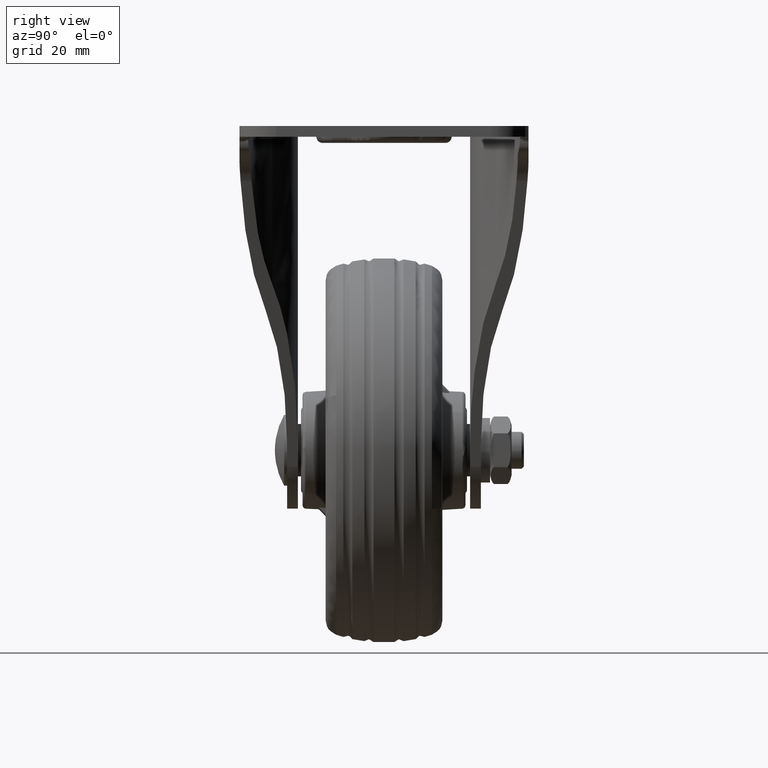
[diagram: clean part render]
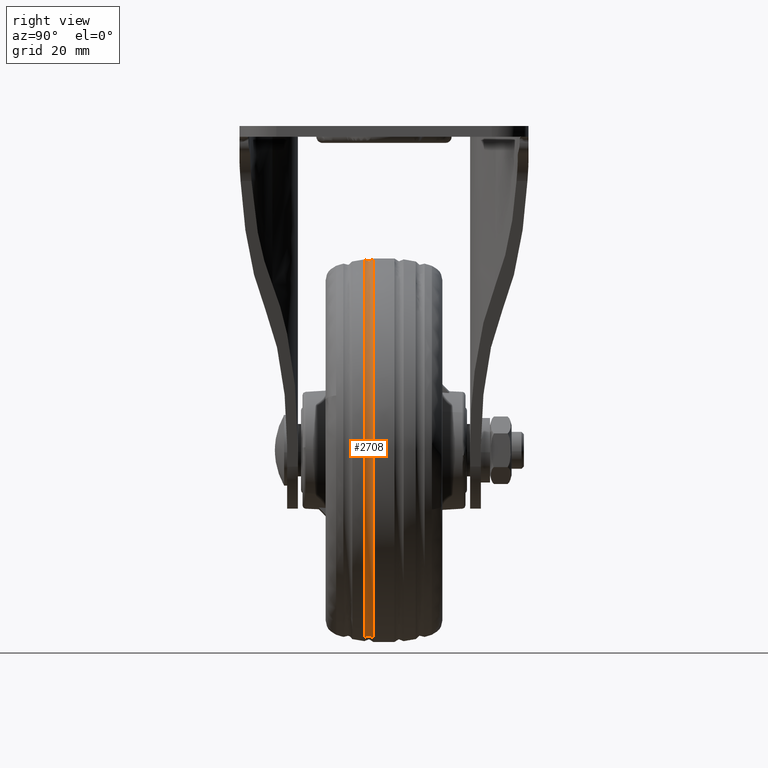
[diagram: same view with one face highlighted and labeled with its STEP entity id]
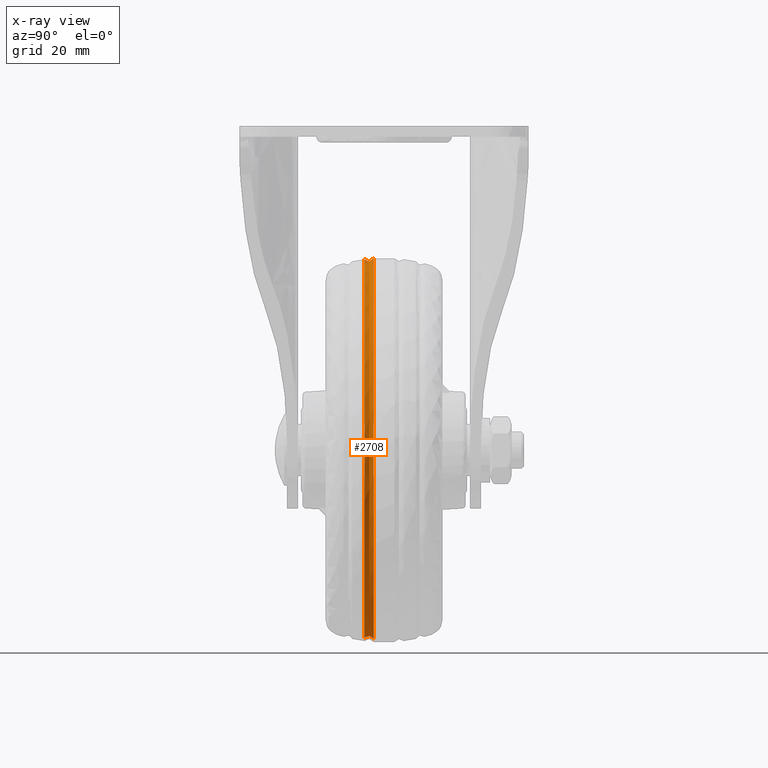
[diagram: x-ray of the same camera — body ghosted, the highlighted face saturated]
A machine part, right view. The second image highlights one B-rep face of the part: STEP entity #2708.
The next image is the same camera in x-ray: the body ghosted, the highlighted face saturated — about 0% of this face is hidden behind the body in this view.
In plain terms, the highlighted face is a freeform B-spline surface patch.
Its self-contained STEP definition (entity closure, byte-faithful):
#2330=CARTESIAN_POINT('',(0.0,-6.374438610043154,62.091986689693542));
#2331=VERTEX_POINT('',#2330);
#2345=CARTESIAN_POINT('',(-10.867531413628820,-6.374433656045675,61.133559608799636));
#2346=VERTEX_POINT('',#2345);
#2347=CARTESIAN_POINT('',(0.0,-6.374438610043154,62.091986689693542));
#2348=CARTESIAN_POINT('',(-5.476028775761519,-6.374436136812212,62.091988745565665));
#2349=CARTESIAN_POINT('',(-10.867531413628818,-6.374433656045674,61.133559608799644));
#2357=(BOUNDED_CURVE()B_SPLINE_CURVE(2,(#2347,#2348,#2349),.UNSPECIFIED.,.F.,.U.)B_SPLINE_CURVE_WITH_KNOTS((3,3),(0.500000000000000,0.530081745966939),.UNSPECIFIED.)CURVE()GEOMETRIC_REPRESENTATION_ITEM()RATIONAL_B_SPLINE_CURVE((1.0,0.964757042384859,0.937995442354536))REPRESENTATION_ITEM(''));
#2358=EDGE_CURVE('',#2331,#2346,#2357,.T.);
#2444=CARTESIAN_POINT('',(10.867531434945681,-6.374433086720965,-61.133573728714481));
#2445=VERTEX_POINT('',#2444);
#2459=CARTESIAN_POINT('',(10.867531434945681,-6.374433086720965,-61.133573728714481));
#2460=CARTESIAN_POINT('',(13.110170700318969,-6.374433097221136,-60.734946528682663));
#2461=CARTESIAN_POINT('',(17.902189161825071,-6.374433131909542,-59.608078220992617));
#2462=CARTESIAN_POINT('',(24.335093092583080,-6.374433215586202,-57.262113031335339));
#2463=CARTESIAN_POINT('',(30.358003833643380,-6.374433328929071,-54.279830681455792));
#2464=CARTESIAN_POINT('',(36.569482480765672,-6.374433481583367,-50.401194539507500));
#2465=CARTESIAN_POINT('',(42.697917362227038,-6.374433686369096,-45.358091066870472));
#2466=CARTESIAN_POINT('',(47.574168065709060,-6.374433906920137,-40.051936698746488));
#2467=CARTESIAN_POINT('',(51.989114397088407,-6.374434152541783,-34.216387143649037));
#2468=CARTESIAN_POINT('',(55.709672599183868,-6.374434422153304,-27.892617510954999));
#2469=CARTESIAN_POINT('',(58.950839966827452,-6.374434762968967,-20.004921612330971));
#2470=CARTESIAN_POINT('',(61.219487073780613,-6.374435127365011,-11.658404479667141));
#2471=CARTESIAN_POINT('',(62.264476238130889,-6.374435517750769,-2.817207741722704));
#2472=CARTESIAN_POINT('',(61.944060884363857,-6.374435952004971,6.909804055884988));
#2473=CARTESIAN_POINT('',(60.363126638784067,-6.374436336429691,15.426454552485220));
#2474=CARTESIAN_POINT('',(57.982331636279852,-6.374436658321194,22.480964481085721));
#2475=CARTESIAN_POINT('',(55.187625681167638,-6.374436945328807,28.722155103563392));
#2476=CARTESIAN_POINT('',(51.796091991655253,-6.374437215182703,34.534905133738782));
#2477=CARTESIAN_POINT('',(47.493556968889798,-6.374437479746863,40.162605106311062));
#2478=CARTESIAN_POINT('',(42.892382760811600,-6.374437712807595,45.061426760913761));
#2479=CARTESIAN_POINT('',(36.969728445148952,-6.374437958502717,50.147835473138592));
#2480=CARTESIAN_POINT('',(29.769193308255200,-6.374438186285432,54.739321672475420));
#2481=CARTESIAN_POINT('',(22.538823093888158,-6.374438354564527,57.992583399676597));
#2482=CARTESIAN_POINT('',(15.573167399382919,-6.374438477426847,60.245329134002631));
#2483=CARTESIAN_POINT('',(8.272028286035349,-6.374438566901085,61.724076381586627));
#2484=CARTESIAN_POINT('',(2.757348086990729,-6.374438601129630,62.092081929184573));
#2485=CARTESIAN_POINT('',(0.0,-6.374438610043154,62.091986689693542));
#2486=B_SPLINE_CURVE_WITH_KNOTS('',3,(#2459,#2460,#2461,#2462,#2463,#2464,#2465,#2466,#2467,#2468,#2469,#2470,#2471,#2472,#2473,#2474,#2475,#2476,#2477,#2478,#2479,#2480,#2481,#2482,#2483,#2484,#2485),.UNSPECIFIED.,.F.,.U.,(4,1,1,1,1,1,1,1,1,1,1,1,1,1,1,1,1,1,1,1,1,1,1,1,4),(0.000000079511352,6.833384223063149,14.745853438821509,20.500378680845760,26.974233986862352,36.684984740949091,44.237780112204057,48.553686360324413,58.624102126443717,66.176902884667570,74.089365819039429,84.519438071261348,92.791301991790235,103.221385334991990,110.414527478862790,115.090096217104600,123.721865807160800,130.555377192814890,136.309886551009210,143.862690880152910,153.933115047603910,161.845512057642110,167.600104250039010,175.872175404109210,184.144220677224010),.UNSPECIFIED.);
#2487=EDGE_CURVE('',#2445,#2331,#2486,.T.);
#2535=CARTESIAN_POINT('',(-10.918381879737060,-3.425196523599276,61.419610804111912));
#2536=VERTEX_POINT('',#2535);
#2570=CARTESIAN_POINT('',(10.918382044488959,-3.425194340832649,-61.419625730897643));
#2571=VERTEX_POINT('',#2570);
#2585=CARTESIAN_POINT('',(10.867531434945681,-6.374433086720965,-61.133573728714481));
#2586=CARTESIAN_POINT('',(10.835997617764370,-6.222391846852705,-60.956185263934799));
#2587=CARTESIAN_POINT('',(10.783663196843580,-5.846184084289674,-60.661786316619740));
#2588=CARTESIAN_POINT('',(10.748800603787769,-5.153340790714335,-60.465672353380207));
#2589=CARTESIAN_POINT('',(10.761268537209199,-4.528946591453851,-60.535808726400298));
#2590=CARTESIAN_POINT('',(10.797335800132901,-4.080890576051390,-60.738699367846998));
#2591=CARTESIAN_POINT('',(10.845042914040260,-3.716353219497317,-61.007068136617967));
#2592=CARTESIAN_POINT('',(10.887826363620221,-3.521683191461349,-61.247739616159201));
#2593=CARTESIAN_POINT('',(10.918382044488959,-3.425194340832649,-61.419625730897643));
#2594=B_SPLINE_CURVE_WITH_KNOTS('',3,(#2585,#2586,#2587,#2588,#2589,#2590,#2591,#2592,#2593),.UNSPECIFIED.,.F.,.U.,(4,1,1,1,1,1,4),(0.000000523027409,0.707167302751854,1.414392477976093,2.121411441895011,2.556630288449993,2.883042927634077,3.481408307153428),.UNSPECIFIED.);
#2595=EDGE_CURVE('',#2445,#2571,#2594,.T.);
#2599=CARTESIAN_POINT('',(-10.867531413628820,-6.374433656045675,61.133559608799636));
#2600=CARTESIAN_POINT('',(-10.840860610233980,-6.245731919076930,60.983527253330337));
#2601=CARTESIAN_POINT('',(-10.801387304280951,-5.979046659955018,60.761476459321521));
#2602=CARTESIAN_POINT('',(-10.762658664561380,-5.477708032772665,60.543614666529002));
#2603=CARTESIAN_POINT('',(-10.752357049866349,-5.021968913845257,60.485664574176219));
#2604=CARTESIAN_POINT('',(-10.762983518585131,-4.552490893767446,60.545442080912970));
#2605=CARTESIAN_POINT('',(-10.791911135794670,-4.106337818328609,60.708169782845822));
#2606=CARTESIAN_POINT('',(-10.846955127353230,-3.698848847504834,61.017810987962903));
#2607=CARTESIAN_POINT('',(-10.896170506385181,-3.495433516820994,61.294664261933342));
#2608=CARTESIAN_POINT('',(-10.918381879737060,-3.425196523599276,61.419610804111912));
#2609=B_SPLINE_CURVE_WITH_KNOTS('',3,(#2599,#2600,#2601,#2602,#2603,#2604,#2605,#2606,#2607,#2608),.UNSPECIFIED.,.F.,.U.,(4,1,1,1,1,1,1,4),(0.000000523473398,0.598366306952133,1.033553740830117,1.631999385822028,1.958228599101034,2.447859504128588,3.046236035646843,3.481406026431190),.UNSPECIFIED.);
#2610=EDGE_CURVE('',#2346,#2536,#2609,.T.);
#2615=CARTESIAN_POINT('',(9.178377660741591,-6.478190734998982,-61.571166448890565));
#2616=CARTESIAN_POINT('',(10.029798365351731,-6.478190734998982,-61.419811935051712));
#2617=CARTESIAN_POINT('',(72.157871276773136,-6.478190734998981,-50.375490108793812));
#2618=CARTESIAN_POINT('',(61.266677192783433,-6.478190734998982,10.891187083989600));
#2619=CARTESIAN_POINT('',(50.375483108793738,-6.478190734998981,72.157864276773040));
#2620=CARTESIAN_POINT('',(-11.752589802960737,-6.478190734998983,61.113542450455967));
#2621=CARTESIAN_POINT('',(-12.604010507896239,-6.478190734998982,60.962187936559253));
#2622=CARTESIAN_POINT('',(9.050953847811277,-5.877914976264891,-60.716371386678667));
#2623=CARTESIAN_POINT('',(9.890554242057281,-5.877914976264891,-60.567118134083401));
#2624=CARTESIAN_POINT('',(71.156100437646629,-5.877914976264890,-49.676125104084434));
#2625=CARTESIAN_POINT('',(60.416109270865505,-5.877914976264890,10.739984166781040));
#2626=CARTESIAN_POINT('',(49.676118104084352,-5.877914976264890,71.156093437646518));
#2627=CARTESIAN_POINT('',(-11.589428091833438,-5.877914976264892,60.265100407589195));
#2628=CARTESIAN_POINT('',(-12.429028486400290,-5.877914976264891,60.115847154936894));
#2629=CARTESIAN_POINT('',(9.065556125913560,-4.830605036026673,-60.814327607983266));
#2630=CARTESIAN_POINT('',(9.906511082193319,-4.830605036026671,-60.664833558943890));
#2631=CARTESIAN_POINT('',(71.270899516808413,-4.830605036026674,-49.756269639543866));
#2632=CARTESIAN_POINT('',(60.513581078176109,-4.830605036026674,10.757311438632209));
#2633=CARTESIAN_POINT('',(49.756262639543799,-4.830605036026674,71.270892516808317));
#2634=CARTESIAN_POINT('',(-11.608125795400252,-4.830605036026672,60.362328597349787));
#2635=CARTESIAN_POINT('',(-12.449080752001395,-4.830605036026674,60.212834548253333));
#2636=CARTESIAN_POINT('',(9.080288359758713,-3.773974362383427,-60.913155609253913));
#2637=CARTESIAN_POINT('',(9.922609933253911,-3.773974362383427,-60.763418620756866));
#2638=CARTESIAN_POINT('',(71.386720272143535,-3.773974362383428,-49.837127436493738));
#2639=CARTESIAN_POINT('',(60.611920354318578,-3.773974362383428,10.774792917824831));
#2640=CARTESIAN_POINT('',(49.837120436493649,-3.773974362383428,71.386713272143396));
#2641=CARTESIAN_POINT('',(-11.626989902725454,-3.773974362383427,60.460422087821705));
#2642=CARTESIAN_POINT('',(-12.469311476542535,-3.773974362383428,60.310685099267431));
#2643=CARTESIAN_POINT('',(9.223795556979288,-3.349917822469868,-61.875842572977888));
#2644=CARTESIAN_POINT('',(10.079429395832314,-3.349917822469868,-61.723739102857344));
#2645=CARTESIAN_POINT('',(72.514934238389898,-3.349917822469869,-50.624766021087673));
#2646=CARTESIAN_POINT('',(61.569846629738763,-3.349917822469868,10.945080608651049));
#2647=CARTESIAN_POINT('',(50.624759021087620,-3.349917822469869,72.514927238389788));
#2648=CARTESIAN_POINT('',(-11.810745821804703,-3.349917822469868,61.415954156560673));
#2649=CARTESIAN_POINT('',(-12.666379660984699,-3.349917822469868,61.263850686382014));
#2657=(BOUNDED_SURFACE()B_SPLINE_SURFACE(2,2,((#2615,#2622,#2629,#2636,#2643),(#2616,#2623,#2630,#2637,#2644),(#2617,#2624,#2631,#2638,#2645),(#2618,#2625,#2632,#2639,#2646),(#2619,#2626,#2633,#2640,#2647),(#2620,#2627,#2634,#2641,#2648),(#2621,#2628,#2635,#2642,#2649)),.UNSPECIFIED.,.F.,.F.,.U.)B_SPLINE_SURFACE_WITH_KNOTS((3,1,2,1,3),(3,2,3),(0.0,2.072231512648644,105.683807162356200,209.295382812063790,211.367614325518390),(0.0,1.950043228552038,3.914771487997497),.UNSPECIFIED.)GEOMETRIC_REPRESENTATION_ITEM()RATIONAL_B_SPLINE_SURFACE(((0.974451150788912,0.857243107997891,1.011715728750585,0.856079833679288,0.976231855880554),(0.968809049436274,0.852279644723966,1.005857864375293,0.851123105798513,0.970579444192094),(0.681061880404690,0.599143017712415,0.707106781186548,0.598329983837692,0.682306448033532),(0.963166948083635,0.847316181450041,1.0,0.846166377917739,0.964927032503635),(0.681061880404690,0.599143017712415,0.707106781186548,0.598329983837692,0.682306448033532),(0.968809049438468,0.852279644725896,1.005857864377571,0.851123105800441,0.970579444194292),(0.974451150793300,0.857243108001752,1.011715728755141,0.856079833683143,0.976231855884950)))REPRESENTATION_ITEM('')SURFACE());
#2658=CARTESIAN_POINT('',(0.0,-3.425199122847669,62.382528146213481));
#2659=VERTEX_POINT('',#2658);
#2660=CARTESIAN_POINT('',(0.0,-3.425199122847669,62.382528146213481));
#2661=CARTESIAN_POINT('',(-5.501651768312353,-3.425197836763780,62.382527440699988));
#2662=CARTESIAN_POINT('',(-10.918381879737051,-3.425196523599277,61.419610804111905));
#2670=(BOUNDED_CURVE()B_SPLINE_CURVE(2,(#2660,#2661,#2662),.UNSPECIFIED.,.F.,.U.)B_SPLINE_CURVE_WITH_KNOTS((3,3),(0.500000000000000,0.530081746569162),.UNSPECIFIED.)CURVE()GEOMETRIC_REPRESENTATION_ITEM()RATIONAL_B_SPLINE_CURVE((1.0,0.964757041679310,0.937995441283025))REPRESENTATION_ITEM(''));
#2671=EDGE_CURVE('',#2659,#2536,#2670,.T.);
#2672=ORIENTED_EDGE('',*,*,#2671,.T.);
#2673=ORIENTED_EDGE('',*,*,#2610,.F.);
#2674=ORIENTED_EDGE('',*,*,#2358,.F.);
#2675=ORIENTED_EDGE('',*,*,#2487,.F.);
#2676=ORIENTED_EDGE('',*,*,#2595,.T.);
#2677=CARTESIAN_POINT('',(10.918382044488959,-3.425194340832649,-61.419625730897643));
#2678=CARTESIAN_POINT('',(14.713262512948900,-3.425194363329765,-60.745481543335472));
#2679=CARTESIAN_POINT('',(20.777577896623111,-3.425194422129223,-59.075411133120483));
#2680=CARTESIAN_POINT('',(29.704023108495399,-3.425194567244173,-55.097761582644097));
#2681=CARTESIAN_POINT('',(37.277014005437380,-3.425194743744556,-50.338135367771237));
#2682=CARTESIAN_POINT('',(44.465033550178262,-3.425194978928450,-44.065229542476480));
#2683=CARTESIAN_POINT('',(50.201166967524870,-3.425195231688288,-37.370961945148217));
#2684=CARTESIAN_POINT('',(55.082748660625093,-3.425195521100898,-29.746165487304431));
#2685=CARTESIAN_POINT('',(58.417673641024862,-3.425195802332163,-22.370505066539369));
#2686=CARTESIAN_POINT('',(60.854612153273827,-3.425196106761319,-14.414418015344459));
#2687=CARTESIAN_POINT('',(62.141372439289668,-3.425196385154807,-7.161219725399700));
#2688=CARTESIAN_POINT('',(62.524529712597939,-3.425196691323226,0.791019304049154));
#2689=CARTESIAN_POINT('',(61.928968592957148,-3.425197016703804,9.218350798127085));
#2690=CARTESIAN_POINT('',(60.148928519636470,-3.425197327632947,17.242511583506690));
#2691=CARTESIAN_POINT('',(57.366747291180623,-3.425197622580113,24.828145500797770));
#2692=CARTESIAN_POINT('',(54.464783737781453,-3.425197850130072,30.662423596694559));
#2693=CARTESIAN_POINT('',(50.633470322170872,-3.425198084698296,36.656587862029113));
#2694=CARTESIAN_POINT('',(46.693179856350064,-3.425198276606578,41.541409311847673));
#2695=CARTESIAN_POINT('',(41.931024010456852,-3.425198465404905,46.325980347001860));
#2696=CARTESIAN_POINT('',(36.717217123353556,-3.425198635827187,50.622989157421607));
#2697=CARTESIAN_POINT('',(30.611394179796179,-3.425198791507147,54.516306520790799));
#2698=CARTESIAN_POINT('',(23.883850013200512,-3.425198923530805,57.781047418088797));
#2699=CARTESIAN_POINT('',(17.844824916196739,-3.425199010363230,59.889790095100643));
#2700=CARTESIAN_POINT('',(9.755928889502888,-3.425199092314203,61.823010921319792));
#2701=CARTESIAN_POINT('',(4.095221953632406,-3.425199119106489,62.383118986895312));
#2702=CARTESIAN_POINT('',(0.0,-3.425199122847669,62.382528146213481));
#2703=B_SPLINE_CURVE_WITH_KNOTS('',3,(#2677,#2678,#2679,#2680,#2681,#2682,#2683,#2684,#2685,#2686,#2687,#2688,#2689,#2690,#2691,#2692,#2693,#2694,#2695,#2696,#2697,#2698,#2699,#2700,#2701,#2702),.UNSPECIFIED.,.F.,.U.,(4,1,1,1,1,1,1,1,1,1,1,1,1,1,1,1,1,1,1,1,1,1,1,4),(0.000000072279619,11.562793818298131,18.789602350631188,29.268492999815891,38.302000319577793,47.335511735739352,55.646348492575839,65.402542646555489,71.545253314497714,80.578832672958256,87.444174567873574,95.393530069583832,105.872417779987000,112.015222224812600,119.603358672157700,125.384808978964700,133.334304876738090,138.393070217114200,145.619880526937290,153.569367518887700,160.073493257886300,168.023000404307110,172.720362128673200,185.005864292890890),.UNSPECIFIED.);
#2704=EDGE_CURVE('',#2571,#2659,#2703,.T.);
#2705=ORIENTED_EDGE('',*,*,#2704,.T.);
#2706=EDGE_LOOP('',(#2672,#2673,#2674,#2675,#2676,#2705));
#2707=FACE_OUTER_BOUND('',#2706,.T.);
#2708=ADVANCED_FACE('',(#2707),#2657,.F.);